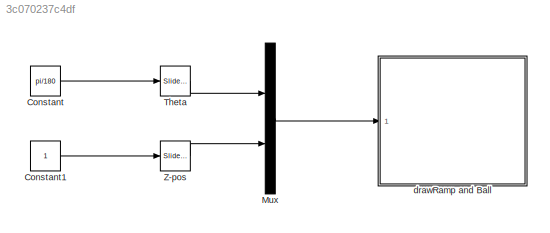
MODEL slx_3c070237c4df
KIND model
CONFIG AbsTol = auto
CONFIG FixedStep = auto
CONFIG MaxStep = auto
CONFIG MinStep = auto
CONFIG RelTol = 1e-3
CONFIG SampleTimeConstraint = Unconstrained
CONFIG Solver = ode45
CONFIG SolverMode = Auto
CONFIG SolverName = ode45
CONFIG StartTime = 0.0
CONFIG StopTime = inf
BLOCK [Constant] Constant
  Value = pi/180
BLOCK [Constant] Constant1
BLOCK [Mux] Mux
  DisplayOption = bar
  Inputs = 2
  Ports = [2, 1]
BLOCK [Reference] Theta  REF=simulink/Math
Operations/Slider
Gain
  Ports = [1, 1]
  SourceBlock = simulink/Math\nOperations/Slider\nGain
  SourceType = Slider Gain
  gain = 20.7373
  high = 90
  low = 0
BLOCK [Reference] Z-pos  REF=simulink/Math
Operations/Slider
Gain
  Ports = [1, 1]
  SourceBlock = simulink/Math\nOperations/Slider\nGain
  SourceType = Slider Gain
  gain = 2.1014
  high = 3
  low = 0
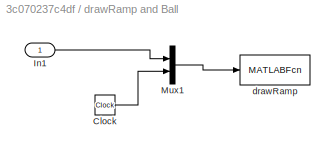
BLOCK [SubSystem] drawRamp and Ball
  Ports = [1]
  RequestExecContextInheritance = off
BLOCK [Clock] drawRamp and Ball/Clock
BLOCK [Inport] drawRamp and Ball/In1
  IconDisplay = Port number
BLOCK [Mux] drawRamp and Ball/Mux1
  DisplayOption = bar
  Inputs = 2
  Ports = [2, 1]
BLOCK [MATLABFcn] drawRamp and Ball/drawRamp
  MATLABFcn = drawRamp(u)
  OutputDimensions = 0
  Ports = [1]
LINE Constant1:1 -> Z-pos:1
LINE Constant:1 -> Theta:1
LINE Mux:1 -> drawRamp and Ball:1
LINE Theta:1 -> Mux:1
LINE Z-pos:1 -> Mux:2
LINE drawRamp and Ball/Clock:1 -> drawRamp and Ball/Mux1:2
LINE drawRamp and Ball/In1:1 -> drawRamp and Ball/Mux1:1
LINE drawRamp and Ball/Mux1:1 -> drawRamp and Ball/drawRamp:1
